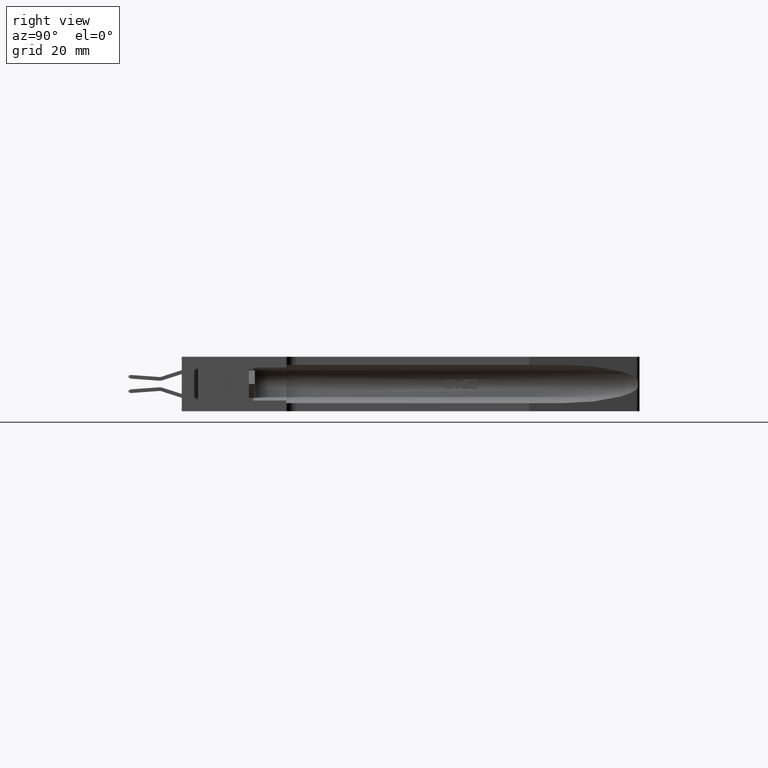
[diagram: clean part render]
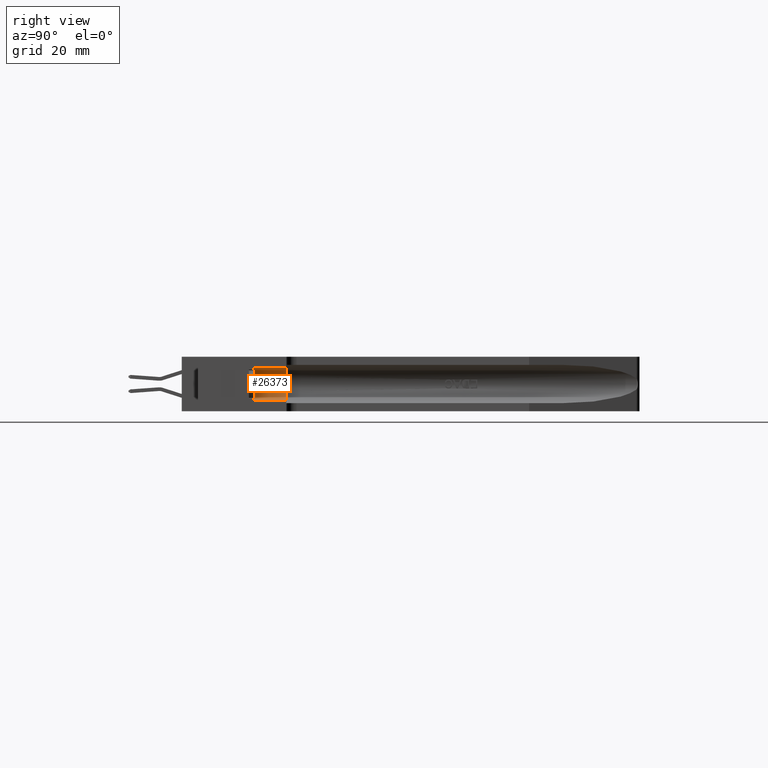
[diagram: same view with one face highlighted and labeled with its STEP entity id]
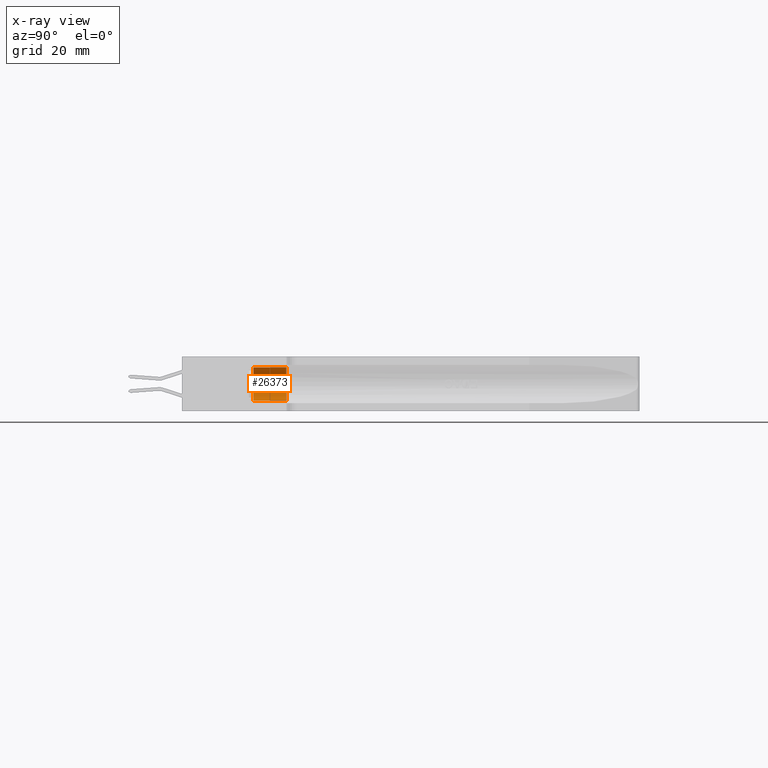
[diagram: x-ray of the same camera — body ghosted, the highlighted face saturated]
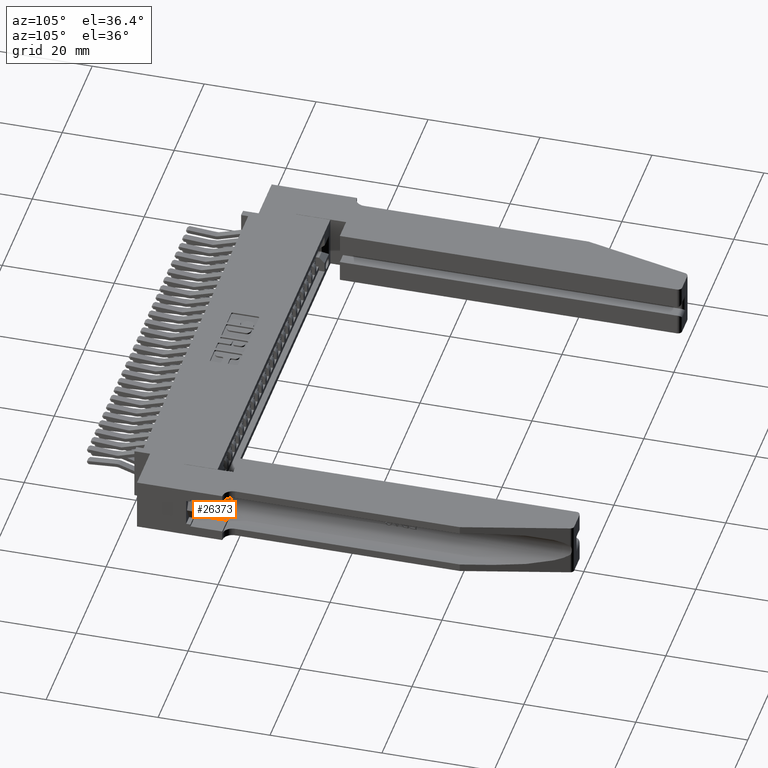
[diagram: same view with one face highlighted and labeled with its STEP entity id]
A machine part, right view. The second image highlights one B-rep face of the part: STEP entity #26373.
The next image is the same camera in x-ray: the body ghosted, the highlighted face saturated — about 0% of this face is hidden behind the body in this view.
A second angle (auxiliary view) of the same face is appended — the face is thin or edge-on in the first view.
In plain terms, the highlighted cylindrical surface (edge-blend (fillet) strip) has radius 2.8575 mm, axis along (-0, 1, -0).
Its self-contained STEP definition (entity closure, byte-faithful):
#577 = VERTEX_POINT ( 'NONE', #15074 ) ;
#1996 = CARTESIAN_POINT ( 'NONE',  ( 0.1305000000000001400, 0.1259999999999999700, 0.07250000000000005100 ) ) ;
#3331 = CYLINDRICAL_SURFACE ( 'NONE', #18157, 0.1124999999999999600 ) ;
#3368 = EDGE_CURVE ( 'NONE', #13667, #577, #27142, .T. ) ;
#3709 = DIRECTION ( 'NONE',  ( 5.612000012723082900E-032, 1.000000000000000000, 5.916456789157588500E-031 ) ) ;
#3968 = CARTESIAN_POINT ( 'NONE',  ( 0.1305000000000001400, -0.3311706508735337000, 0.07250000000000005100 ) ) ;
#4598 = CIRCLE ( 'NONE', #26877, 0.1124999999999999600 ) ;
#4760 = CARTESIAN_POINT ( 'NONE',  ( 0.1305000000000001400, 0.3499999999999999800, 0.07250000000000005100 ) ) ;
#4818 = EDGE_CURVE ( 'NONE', #24169, #13667, #4598, .T. ) ;
#6161 = DIRECTION ( 'NONE',  ( 5.612000012723082900E-032, 1.000000000000000000, 5.916456789157588500E-031 ) ) ;
#6217 = ORIENTED_EDGE ( 'NONE', *, *, #23324, .T. ) ;
#6570 = CARTESIAN_POINT ( 'NONE',  ( 0.1304999999999996200, 0.1259999999999999700, 0.1850000000000000000 ) ) ;
#6681 = EDGE_CURVE ( 'NONE', #24169, #21552, #23227, .T. ) ;
#8823 = DIRECTION ( 'NONE',  ( -1.000000000000000000, 0.0000000000000000000, 0.0000000000000000000 ) ) ;
#8939 = DIRECTION ( 'NONE',  ( 5.612000012723082900E-032, 1.000000000000000000, 5.916456789157588500E-031 ) ) ;
#10534 = FACE_OUTER_BOUND ( 'NONE', #20234, .T. ) ;
#11380 = ORIENTED_EDGE ( 'NONE', *, *, #3368, .T. ) ;
#12063 = ORIENTED_EDGE ( 'NONE', *, *, #6681, .F. ) ;
#13667 = VERTEX_POINT ( 'NONE', #14637 ) ;
#14637 = CARTESIAN_POINT ( 'NONE',  ( 0.1305000000000001400, 0.1260000000000000300, 0.2974999999999999900 ) ) ;
#14801 = AXIS2_PLACEMENT_3D ( 'NONE', #21910, #8939, #24064 ) ;
#15074 = CARTESIAN_POINT ( 'NONE',  ( 0.1305000000000001400, 0.3499999999999999800, 0.2974999999999998800 ) ) ;
#16374 = CIRCLE ( 'NONE', #14801, 0.1124999999999999600 ) ;
#16382 = VECTOR ( 'NONE', #25883, 39.37007874015748100 ) ;
#17484 = VECTOR ( 'NONE', #6161, 39.37007874015748100 ) ;
#18157 = AXIS2_PLACEMENT_3D ( 'NONE', #23034, #3709, #18970 ) ;
#18970 = DIRECTION ( 'NONE',  ( 0.0000000000000000000, 0.0000000000000000000, 1.000000000000000000 ) ) ;
#20234 = EDGE_LOOP ( 'NONE', ( #24740, #11380, #6217, #12063 ) ) ;
#21351 = CARTESIAN_POINT ( 'NONE',  ( 0.1305000000000001400, -0.3311706508735337000, 0.2974999999999999900 ) ) ;
#21552 = VERTEX_POINT ( 'NONE', #4760 ) ;
#21795 = DIRECTION ( 'NONE',  ( -2.965437584850396500E-032, -1.000000000000000000, -5.916456789157588500E-031 ) ) ;
#21910 = CARTESIAN_POINT ( 'NONE',  ( 0.1304999999999996200, 0.3499999999999999800, 0.1849999999999999100 ) ) ;
#23034 = CARTESIAN_POINT ( 'NONE',  ( 0.1304999999999996200, -0.3311706508735337000, 0.1850000000000000000 ) ) ;
#23227 = LINE ( 'NONE', #3968, #17484 ) ;
#23324 = EDGE_CURVE ( 'NONE', #577, #21552, #16374, .T. ) ;
#24064 = DIRECTION ( 'NONE',  ( 0.0000000000000000000, 0.0000000000000000000, 1.000000000000000000 ) ) ;
#24169 = VERTEX_POINT ( 'NONE', #1996 ) ;
#24740 = ORIENTED_EDGE ( 'NONE', *, *, #4818, .T. ) ;
#25883 = DIRECTION ( 'NONE',  ( 5.612000012723082900E-032, 1.000000000000000000, 5.916456789157588500E-031 ) ) ;
#26373 = ADVANCED_FACE ( 'NONE', ( #10534 ), #3331, .F. ) ;
#26877 = AXIS2_PLACEMENT_3D ( 'NONE', #6570, #21795, #8823 ) ;
#27142 = LINE ( 'NONE', #21351, #16382 ) ;